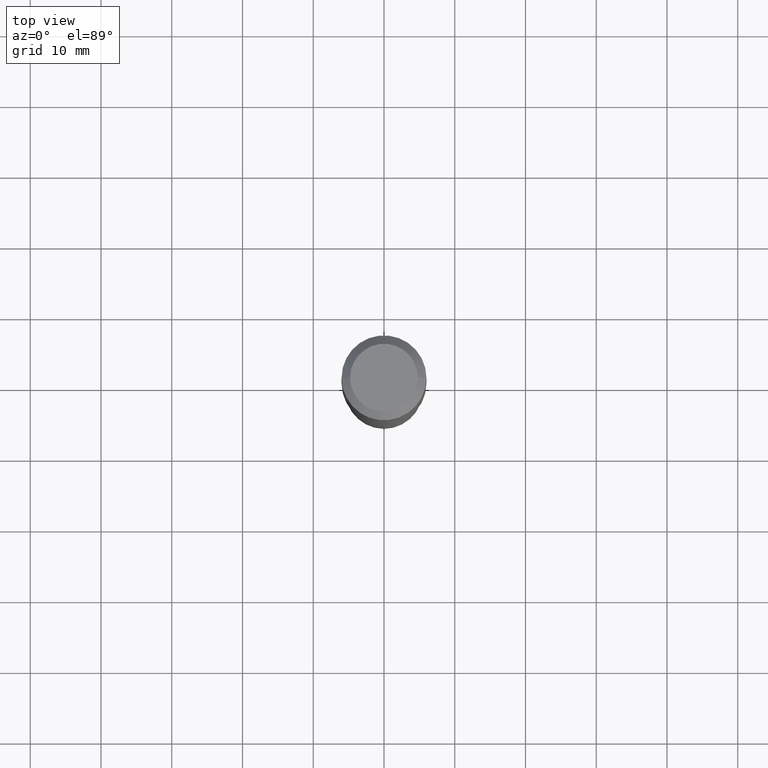
[diagram: clean part render]
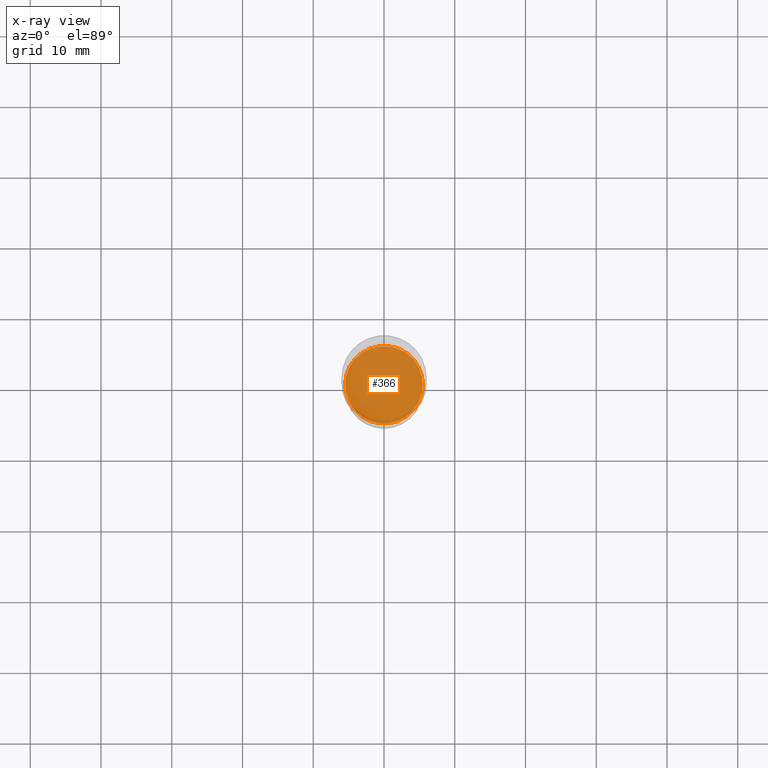
[diagram: x-ray — body ghosted, one internal face saturated and labeled with its STEP entity id]
A machine part, top view, then the same camera in x-ray: the body is ghosted and one INTERNAL B-rep face — a face not visible from any outside direction — is saturated and labeled: STEP entity #366.
In plain terms, the highlighted planar face has unit normal (-0, 0, 1).
Its self-contained STEP definition (entity closure, byte-faithful):
#15 = FACE_OUTER_BOUND ( 'NONE', #120, .T. ) ;
#24 = DIRECTION ( 'NONE',  ( 1.000000000000000000, -6.982962677686271444E-15, 0.000000000000000000 ) ) ;
#56 = CARTESIAN_POINT ( 'NONE',  ( -0.2160500000000000198, -6.434671681330630643E-15, -2.283399999999999874 ) ) ;
#71 = ORIENTED_EDGE ( 'NONE', *, *, #125, .F. ) ;
#102 = VERTEX_POINT ( 'NONE', #212 ) ;
#103 = DIRECTION ( 'NONE',  ( 1.000000000000000000, -6.982962677686271444E-15, 0.000000000000000000 ) ) ;
#120 = EDGE_LOOP ( 'NONE', ( #71, #183 ) ) ;
#125 = EDGE_CURVE ( 'NONE', #102, #361, #353, .T. ) ;
#128 = CARTESIAN_POINT ( 'NONE',  ( 5.583983472043140562E-29, -7.972448489114438042E-15, -2.283399999999999874 ) ) ;
#165 = PLANE ( 'NONE',  #255 ) ;
#183 = ORIENTED_EDGE ( 'NONE', *, *, #198, .F. ) ;
#198 = EDGE_CURVE ( 'NONE', #361, #102, #437, .T. ) ;
#201 = DIRECTION ( 'NONE',  ( -2.438088387897960049E-29, 3.491481338843145188E-15, 1.000000000000000000 ) ) ;
#212 = CARTESIAN_POINT ( 'NONE',  ( 0.2160500000000000198, -9.481117575628557435E-15, -2.283399999999999874 ) ) ;
#249 = AXIS2_PLACEMENT_3D ( 'NONE', #288, #401, #24 ) ;
#255 = AXIS2_PLACEMENT_3D ( 'NONE', #128, #201, #306 ) ;
#288 = CARTESIAN_POINT ( 'NONE',  ( 5.583983472043140562E-29, -7.972448489114438042E-15, -2.283399999999999874 ) ) ;
#306 = DIRECTION ( 'NONE',  ( 1.000000000000000000, -6.982962677686265922E-15, 4.876176775795935793E-29 ) ) ;
#353 = CIRCLE ( 'NONE', #388, 0.2160500000000000198 ) ;
#361 = VERTEX_POINT ( 'NONE', #56 ) ;
#366 = ADVANCED_FACE ( 'NONE', ( #15 ), #165, .F. ) ;
#388 = AXIS2_PLACEMENT_3D ( 'NONE', #394, #442, #103 ) ;
#394 = CARTESIAN_POINT ( 'NONE',  ( 5.583983472043140562E-29, -7.972448489114438042E-15, -2.283399999999999874 ) ) ;
#401 = DIRECTION ( 'NONE',  ( -2.445468806185136597E-29, 3.491481338843145583E-15, 1.000000000000000000 ) ) ;
#437 = CIRCLE ( 'NONE', #249, 0.2160500000000000198 ) ;
#442 = DIRECTION ( 'NONE',  ( -2.445468806185136597E-29, 3.491481338843145583E-15, 1.000000000000000000 ) ) ;